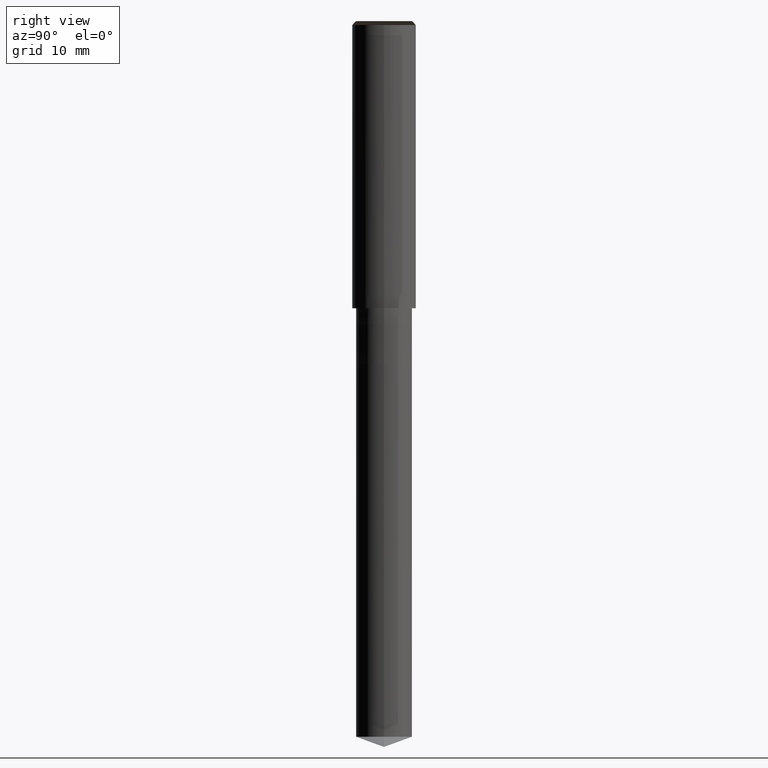
[diagram: clean part render]
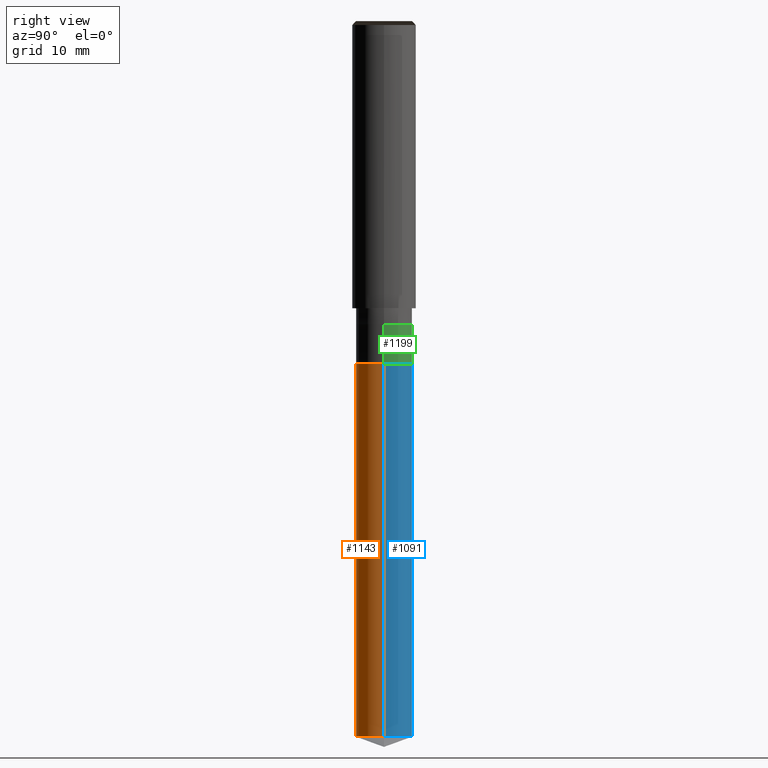
[diagram: same view with three faces highlighted in distinct colors, each labeled with its STEP entity id]
A machine part, right view with three faces highlighted in distinct colors.
Their STEP definitions:

[orange] entity #1143 — the highlighted face is a freeform B-spline surface patch.
#993=CARTESIAN_POINT('',(3.5,0.0,-53.726104180068));
#997=CARTESIAN_POINT('',(-3.5,0.0,-53.726104180068));
#998=CARTESIAN_POINT('',(3.5,0.0,-7.0));
#1002=CARTESIAN_POINT('',(-3.5,0.0,-7.0));
#1004=CARTESIAN_POINT('',(-3.5,-3.5,-53.726104180068));
#1005=CARTESIAN_POINT('',(0.0,-3.5,-53.726104180068));
#1006=CARTESIAN_POINT('',(3.5,-3.5,-53.726104180068));
#1007=CARTESIAN_POINT('',(-3.5,-3.5,-7.0));
#1008=CARTESIAN_POINT('',(0.0,-3.5,-7.0));
#1009=CARTESIAN_POINT('',(3.5,-3.5,-7.0));
#1124=(
BOUNDED_SURFACE()
B_SPLINE_SURFACE(1,2,(
(#997,#1004,#1005,#1006,#993),
(#1002,#1007,#1008,#1009,#998)
), .UNSPECIFIED.,.F.,.F.,.F.)
B_SPLINE_SURFACE_WITH_KNOTS((2,2),(3,2,3),(
0.0,1.0),(
0.0,0.5,1.0), .UNSPECIFIED.)
GEOMETRIC_REPRESENTATION_ITEM()
RATIONAL_B_SPLINE_SURFACE(((1.0,0.707106781187,1.0,0.707106781187,1.0),
(1.0,0.707106781187,1.0,0.707106781187,1.0)
))
REPRESENTATION_ITEM('')
SURFACE()
);
#1125=(
BOUNDED_CURVE()
B_SPLINE_CURVE(2,(#993,#1006,#1005,#1004,#997),.UNSPECIFIED.,.F.,.F.)
B_SPLINE_CURVE_WITH_KNOTS((3,2,3),
(0.0,0.5,1.0),.UNSPECIFIED.)
CURVE()
GEOMETRIC_REPRESENTATION_ITEM()
RATIONAL_B_SPLINE_CURVE((1.0,0.707106781187,1.0,0.707106781187,1.0))
REPRESENTATION_ITEM('')
);
#1126=(
BOUNDED_CURVE()
B_SPLINE_CURVE(1,(#997,#1002),.UNSPECIFIED.,.F.,.F.)
B_SPLINE_CURVE_WITH_KNOTS((2,2),
(0.0,1.0),.UNSPECIFIED.)
CURVE()
GEOMETRIC_REPRESENTATION_ITEM()
RATIONAL_B_SPLINE_CURVE((1.0,1.0))
REPRESENTATION_ITEM('')
);
#1127=(
BOUNDED_CURVE()
B_SPLINE_CURVE(2,(#1002,#1007,#1008,#1009,#998),.UNSPECIFIED.,.F.,.F.)
B_SPLINE_CURVE_WITH_KNOTS((3,2,3),
(0.0,0.5,1.0),.UNSPECIFIED.)
CURVE()
GEOMETRIC_REPRESENTATION_ITEM()
RATIONAL_B_SPLINE_CURVE((1.0,0.707106781187,1.0,0.707106781187,1.0))
REPRESENTATION_ITEM('')
);
#1128=(
BOUNDED_CURVE()
B_SPLINE_CURVE(1,(#998,#993),.UNSPECIFIED.,.F.,.F.)
B_SPLINE_CURVE_WITH_KNOTS((2,2),
(0.0,1.0),.UNSPECIFIED.)
CURVE()
GEOMETRIC_REPRESENTATION_ITEM()
RATIONAL_B_SPLINE_CURVE((1.0,1.0))
REPRESENTATION_ITEM('')
);
#1129=VERTEX_POINT('',#993);
#1130=VERTEX_POINT('',#997);
#1131=VERTEX_POINT('',#998);
#1132=VERTEX_POINT('',#1002);
#1133=EDGE_CURVE('',#1129,#1130,#1125,.T.);
#1134=EDGE_CURVE('',#1130,#1132,#1126,.T.);
#1135=EDGE_CURVE('',#1132,#1131,#1127,.T.);
#1136=EDGE_CURVE('',#1131,#1129,#1128,.T.);
#1137=ORIENTED_EDGE('',*,*,#1133,.T.);
#1138=ORIENTED_EDGE('',*,*,#1134,.T.);
#1139=ORIENTED_EDGE('',*,*,#1135,.T.);
#1140=ORIENTED_EDGE('',*,*,#1136,.T.);
#1141=EDGE_LOOP('',(#1137,#1138,#1139,#1140));
#1142=FACE_OUTER_BOUND('',#1141,.T.);
#1143=ADVANCED_FACE('',(#1142),#1124,.T.);

[blue] entity #1091 — the highlighted face is a freeform B-spline surface patch.
#993=CARTESIAN_POINT('',(3.5,0.0,-53.726104180068));
#994=CARTESIAN_POINT('',(3.5,3.5,-53.726104180068));
#995=CARTESIAN_POINT('',(0.0,3.5,-53.726104180068));
#996=CARTESIAN_POINT('',(-3.5,3.5,-53.726104180068));
#997=CARTESIAN_POINT('',(-3.5,0.0,-53.726104180068));
#998=CARTESIAN_POINT('',(3.5,0.0,-7.0));
#999=CARTESIAN_POINT('',(3.5,3.5,-7.0));
#1000=CARTESIAN_POINT('',(0.0,3.5,-7.0));
#1001=CARTESIAN_POINT('',(-3.5,3.5,-7.0));
#1002=CARTESIAN_POINT('',(-3.5,0.0,-7.0));
#1072=(
BOUNDED_SURFACE()
B_SPLINE_SURFACE(1,2,(
(#993,#994,#995,#996,#997),
(#998,#999,#1000,#1001,#1002)
), .UNSPECIFIED.,.F.,.F.,.F.)
B_SPLINE_SURFACE_WITH_KNOTS((2,2),(3,2,3),(
0.0,1.0),(
0.0,0.5,1.0), .UNSPECIFIED.)
GEOMETRIC_REPRESENTATION_ITEM()
RATIONAL_B_SPLINE_SURFACE(((1.0,0.707106781187,1.0,0.707106781187,1.0),
(1.0,0.707106781187,1.0,0.707106781187,1.0)
))
REPRESENTATION_ITEM('')
SURFACE()
);
#1073=(
BOUNDED_CURVE()
B_SPLINE_CURVE(2,(#997,#996,#995,#994,#993),.UNSPECIFIED.,.F.,.F.)
B_SPLINE_CURVE_WITH_KNOTS((3,2,3),
(0.0,0.5,1.0),.UNSPECIFIED.)
CURVE()
GEOMETRIC_REPRESENTATION_ITEM()
RATIONAL_B_SPLINE_CURVE((1.0,0.707106781187,1.0,0.707106781187,1.0))
REPRESENTATION_ITEM('')
);
#1074=(
BOUNDED_CURVE()
B_SPLINE_CURVE(1,(#993,#998),.UNSPECIFIED.,.F.,.F.)
B_SPLINE_CURVE_WITH_KNOTS((2,2),
(0.0,1.0),.UNSPECIFIED.)
CURVE()
GEOMETRIC_REPRESENTATION_ITEM()
RATIONAL_B_SPLINE_CURVE((1.0,1.0))
REPRESENTATION_ITEM('')
);
#1075=(
BOUNDED_CURVE()
B_SPLINE_CURVE(2,(#998,#999,#1000,#1001,#1002),.UNSPECIFIED.,.F.,.F.)
B_SPLINE_CURVE_WITH_KNOTS((3,2,3),
(0.0,0.5,1.0),.UNSPECIFIED.)
CURVE()
GEOMETRIC_REPRESENTATION_ITEM()
RATIONAL_B_SPLINE_CURVE((1.0,0.707106781187,1.0,0.707106781187,1.0))
REPRESENTATION_ITEM('')
);
#1076=(
BOUNDED_CURVE()
B_SPLINE_CURVE(1,(#1002,#997),.UNSPECIFIED.,.F.,.F.)
B_SPLINE_CURVE_WITH_KNOTS((2,2),
(0.0,1.0),.UNSPECIFIED.)
CURVE()
GEOMETRIC_REPRESENTATION_ITEM()
RATIONAL_B_SPLINE_CURVE((1.0,1.0))
REPRESENTATION_ITEM('')
);
#1077=VERTEX_POINT('',#993);
#1078=VERTEX_POINT('',#997);
#1079=VERTEX_POINT('',#998);
#1080=VERTEX_POINT('',#1002);
#1081=EDGE_CURVE('',#1078,#1077,#1073,.T.);
#1082=EDGE_CURVE('',#1077,#1079,#1074,.T.);
#1083=EDGE_CURVE('',#1079,#1080,#1075,.T.);
#1084=EDGE_CURVE('',#1080,#1078,#1076,.T.);
#1085=ORIENTED_EDGE('',*,*,#1081,.T.);
#1086=ORIENTED_EDGE('',*,*,#1082,.T.);
#1087=ORIENTED_EDGE('',*,*,#1083,.T.);
#1088=ORIENTED_EDGE('',*,*,#1084,.T.);
#1089=EDGE_LOOP('',(#1085,#1086,#1087,#1088));
#1090=FACE_OUTER_BOUND('',#1089,.T.);
#1091=ADVANCED_FACE('',(#1090),#1072,.T.);

[green] entity #1199 — the highlighted face is a freeform B-spline surface patch.
#998=CARTESIAN_POINT('',(3.5,0.0,-7.0));
#999=CARTESIAN_POINT('',(3.5,3.5,-7.0));
#1000=CARTESIAN_POINT('',(0.0,3.5,-7.0));
#1001=CARTESIAN_POINT('',(-3.5,3.5,-7.0));
#1002=CARTESIAN_POINT('',(-3.5,0.0,-7.0));
#1010=CARTESIAN_POINT('',(3.5,0.0,-2.0));
#1011=CARTESIAN_POINT('',(3.5,3.5,-2.0));
#1012=CARTESIAN_POINT('',(0.0,3.5,-2.0));
#1013=CARTESIAN_POINT('',(-3.5,3.5,-2.0));
#1014=CARTESIAN_POINT('',(-3.5,0.0,-2.0));
#1180=(
BOUNDED_SURFACE()
B_SPLINE_SURFACE(1,2,(
(#998,#999,#1000,#1001,#1002),
(#1010,#1011,#1012,#1013,#1014)
), .UNSPECIFIED.,.F.,.F.,.F.)
B_SPLINE_SURFACE_WITH_KNOTS((2,2),(3,2,3),(
0.0,1.0),(
0.0,0.5,1.0), .UNSPECIFIED.)
GEOMETRIC_REPRESENTATION_ITEM()
RATIONAL_B_SPLINE_SURFACE(((1.0,0.707106781187,1.0,0.707106781187,1.0),
(1.0,0.707106781187,1.0,0.707106781187,1.0)
))
REPRESENTATION_ITEM('')
SURFACE()
);
#1181=(
BOUNDED_CURVE()
B_SPLINE_CURVE(2,(#1002,#1001,#1000,#999,#998),.UNSPECIFIED.,.F.,.F.)
B_SPLINE_CURVE_WITH_KNOTS((3,2,3),
(0.0,0.5,1.0),.UNSPECIFIED.)
CURVE()
GEOMETRIC_REPRESENTATION_ITEM()
RATIONAL_B_SPLINE_CURVE((1.0,0.707106781187,1.0,0.707106781187,1.0))
REPRESENTATION_ITEM('')
);
#1182=(
BOUNDED_CURVE()
B_SPLINE_CURVE(1,(#998,#1010),.UNSPECIFIED.,.F.,.F.)
B_SPLINE_CURVE_WITH_KNOTS((2,2),
(0.0,1.0),.UNSPECIFIED.)
CURVE()
GEOMETRIC_REPRESENTATION_ITEM()
RATIONAL_B_SPLINE_CURVE((1.0,1.0))
REPRESENTATION_ITEM('')
);
#1183=(
BOUNDED_CURVE()
B_SPLINE_CURVE(2,(#1010,#1011,#1012,#1013,#1014),.UNSPECIFIED.,.F.,.F.)
B_SPLINE_CURVE_WITH_KNOTS((3,2,3),
(0.0,0.5,1.0),.UNSPECIFIED.)
CURVE()
GEOMETRIC_REPRESENTATION_ITEM()
RATIONAL_B_SPLINE_CURVE((1.0,0.707106781187,1.0,0.707106781187,1.0))
REPRESENTATION_ITEM('')
);
#1184=(
BOUNDED_CURVE()
B_SPLINE_CURVE(1,(#1014,#1002),.UNSPECIFIED.,.F.,.F.)
B_SPLINE_CURVE_WITH_KNOTS((2,2),
(0.0,1.0),.UNSPECIFIED.)
CURVE()
GEOMETRIC_REPRESENTATION_ITEM()
RATIONAL_B_SPLINE_CURVE((1.0,1.0))
REPRESENTATION_ITEM('')
);
#1185=VERTEX_POINT('',#998);
#1186=VERTEX_POINT('',#1002);
#1187=VERTEX_POINT('',#1010);
#1188=VERTEX_POINT('',#1014);
#1189=EDGE_CURVE('',#1186,#1185,#1181,.T.);
#1190=EDGE_CURVE('',#1185,#1187,#1182,.T.);
#1191=EDGE_CURVE('',#1187,#1188,#1183,.T.);
#1192=EDGE_CURVE('',#1188,#1186,#1184,.T.);
#1193=ORIENTED_EDGE('',*,*,#1189,.T.);
#1194=ORIENTED_EDGE('',*,*,#1190,.T.);
#1195=ORIENTED_EDGE('',*,*,#1191,.T.);
#1196=ORIENTED_EDGE('',*,*,#1192,.T.);
#1197=EDGE_LOOP('',(#1193,#1194,#1195,#1196));
#1198=FACE_OUTER_BOUND('',#1197,.T.);
#1199=ADVANCED_FACE('',(#1198),#1180,.T.);